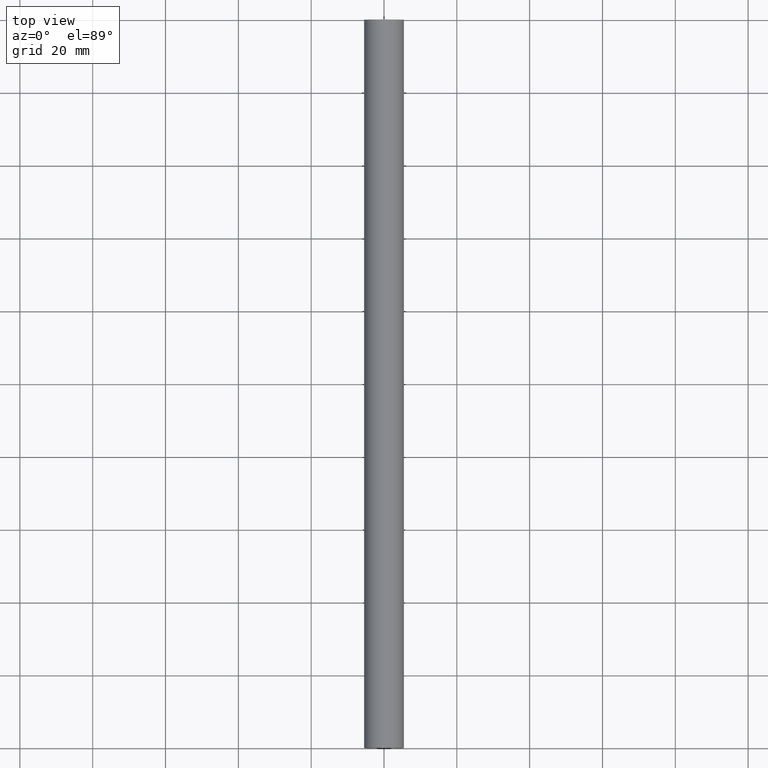
[diagram: clean part render]
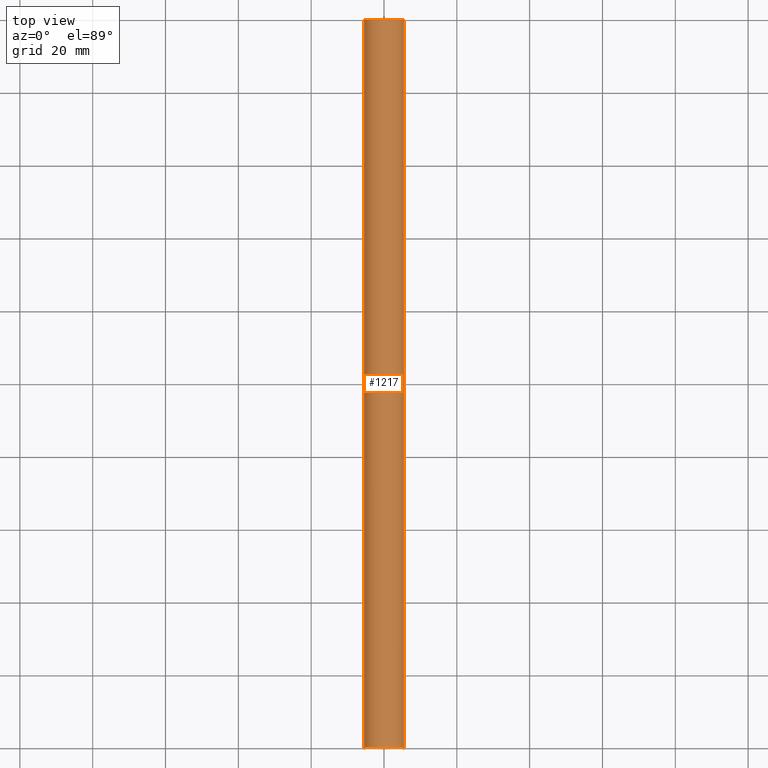
[diagram: same view with one face highlighted and labeled with its STEP entity id]
A machine part, top view. The second image highlights one B-rep face of the part: STEP entity #1217.
In plain terms, the highlighted face is a freeform B-spline surface patch.
Its self-contained STEP definition (entity closure, byte-faithful):
#770=CARTESIAN_POINT('',(5.474783945414970,0.0,-5.967107423224420));
#771=VERTEX_POINT('',#770);
#777=CARTESIAN_POINT('',(-5.474783945414960,0.0,-5.967107423224380));
#778=VERTEX_POINT('',#777);
#779=CARTESIAN_POINT('',(5.474783945414970,0.0,-5.967107423224420));
#780=CARTESIAN_POINT('',(5.528089472293734,0.0,-5.352947772302506));
#781=CARTESIAN_POINT('',(5.430724814971278,0.0,-4.178751100546855));
#782=CARTESIAN_POINT('',(4.796797843431809,0.0,-2.676871972452646));
#783=CARTESIAN_POINT('',(3.860724628707918,0.0,-1.498336793745772));
#784=CARTESIAN_POINT('',(2.748098974885307,0.0,-0.668779715161664));
#785=CARTESIAN_POINT('',(1.422518208917215,0.0,-0.126478291012889));
#786=CARTESIAN_POINT('',(-0.047443654217036,0.0,0.074734913632913));
#787=CARTESIAN_POINT('',(-1.422430704838693,0.0,-0.131650333397912));
#788=CARTESIAN_POINT('',(-2.744588070895392,0.0,-0.672457450194395));
#789=CARTESIAN_POINT('',(-3.733966957657617,0.0,-1.390490918137118));
#790=CARTESIAN_POINT('',(-4.627277552244890,0.0,-2.443490960344150));
#791=CARTESIAN_POINT('',(-5.165653161141839,0.0,-3.485048737056491));
#792=CARTESIAN_POINT('',(-5.484249699139913,0.0,-4.730543095596393));
#793=CARTESIAN_POINT('',(-5.513594603298420,0.0,-5.518302720792216));
#794=CARTESIAN_POINT('',(-5.474783945414960,0.0,-5.967107423224380));
#795=B_SPLINE_CURVE_WITH_KNOTS('',3,(#779,#780,#781,#782,#783,#784,#785,#786,#787,#788,#789,#790,#791,#792,#793,#794),.UNSPECIFIED.,.F.,.U.,(4,1,1,1,1,1,1,1,1,1,1,1,1,4),(0.000000784211210,1.849284648861733,3.485256842392172,4.836732531411034,6.330346934060120,7.610595677814629,9.104333091299978,10.740328952223130,11.736072005233160,13.371950374832320,14.367747301252610,15.861468346933270,16.857246470693202,18.208665449824199),.UNSPECIFIED.);
#796=EDGE_CURVE('',#771,#778,#795,.T.);
#865=CARTESIAN_POINT('',(-5.474783945414960,200.0,-5.967107423224380));
#866=VERTEX_POINT('',#865);
#872=CARTESIAN_POINT('',(5.474783945414970,200.0,-5.967107423224420));
#873=VERTEX_POINT('',#872);
#874=CARTESIAN_POINT('',(5.474783945414970,200.0,-5.967107423224420));
#875=CARTESIAN_POINT('',(5.519827367886293,200.000000000000600,-5.447434836918098));
#876=CARTESIAN_POINT('',(5.476250827559981,199.999999999999200,-4.682330406483599));
#877=CARTESIAN_POINT('',(5.173069655375769,200.000000000000910,-3.558308196471750));
#878=CARTESIAN_POINT('',(4.667131906815883,199.999999999999690,-2.478228906192033));
#879=CARTESIAN_POINT('',(3.805376178503539,199.999999999999400,-1.448939689945759));
#880=CARTESIAN_POINT('',(2.797320278621489,200.000000000001110,-0.727653442308251));
#881=CARTESIAN_POINT('',(1.761000375124963,199.999999999999400,-0.247714601844893));
#882=CARTESIAN_POINT('',(0.690185304667137,200.000000000000110,-0.000929538469778));
#883=CARTESIAN_POINT('',(-0.642966901153275,200.000000000000400,0.016447808360785));
#884=CARTESIAN_POINT('',(-1.974447564887812,199.999999999999200,-0.290382409590392));
#885=CARTESIAN_POINT('',(-3.397534599943618,200.000000000000200,-1.076653023219228));
#886=CARTESIAN_POINT('',(-4.506595929931150,200.000000000000110,-2.209450509880834));
#887=CARTESIAN_POINT('',(-5.165631865335141,199.999999999999890,-3.485073816304869));
#888=CARTESIAN_POINT('',(-5.484243371571948,199.999999999999890,-4.730544269736238));
#889=CARTESIAN_POINT('',(-5.513601357104204,200.0,-5.518301953341100));
#890=CARTESIAN_POINT('',(-5.474783945414960,200.0,-5.967107423224380));
#891=B_SPLINE_CURVE_WITH_KNOTS('',3,(#874,#875,#876,#877,#878,#879,#880,#881,#882,#883,#884,#885,#886,#887,#888,#889,#890),.UNSPECIFIED.,.F.,.U.,(4,1,1,1,1,1,1,1,1,1,1,1,1,1,4),(0.000000784211210,1.564768177473450,2.276058943745541,3.485256842392172,5.121232194705986,6.259125052006780,7.183824231026742,8.535309277416046,9.531100484633718,11.167095544799601,12.589490934239240,14.367747301252610,15.861468346933270,16.857246470693202,18.208665449824199),.UNSPECIFIED.);
#892=EDGE_CURVE('',#873,#866,#891,.T.);
#1179=CARTESIAN_POINT('',(-5.474783945414960,200.0,-5.967107423224380));
#1180=CARTESIAN_POINT('',(-5.474783945414960,0.0,-5.967107423224380));
#1181=QUASI_UNIFORM_CURVE('',1,(#1179,#1180),.UNSPECIFIED.,.F.,.U.);
#1182=EDGE_CURVE('',#866,#778,#1181,.T.);
#1189=CARTESIAN_POINT('',(-5.458980417665283,205.0,-6.124052395861134));
#1190=CARTESIAN_POINT('',(-5.458980417665283,-5.125000000000000,-6.124052395861134));
#1191=CARTESIAN_POINT('',(-6.182514492786639,205.0,0.155786212259161));
#1192=CARTESIAN_POINT('',(-6.182514492786639,-5.125000000000000,0.155786212259161));
#1193=CARTESIAN_POINT('',(0.136905638570308,205.0,-0.001705709122539));
#1194=CARTESIAN_POINT('',(0.136905638570308,-5.125000000000000,-0.001705709122539));
#1195=CARTESIAN_POINT('',(6.456325769927256,205.0,-0.159197630504240));
#1196=CARTESIAN_POINT('',(6.456325769927256,-5.125000000000000,-0.159197630504240));
#1197=CARTESIAN_POINT('',(5.420873253147789,205.0,-6.395198960474835));
#1198=CARTESIAN_POINT('',(5.420873253147789,-5.125000000000000,-6.395198960474835));
#1206=(BOUNDED_SURFACE()B_SPLINE_SURFACE(1,2,((#1189,#1191,#1193,#1195,#1197),(#1190,#1192,#1194,#1196,#1198)),.UNSPECIFIED.,.F.,.F.,.U.)B_SPLINE_SURFACE_WITH_KNOTS((2,2),(3,2,3),(0.0,210.125000000000000),(0.0,10.017034121555410,20.034068243110809),.UNSPECIFIED.)GEOMETRIC_REPRESENTATION_ITEM()RATIONAL_B_SPLINE_SURFACE(((1.0,0.656059028990507,1.0,0.656059028990507,1.0),(1.0,0.656059028990507,1.0,0.656059028990507,1.0)))REPRESENTATION_ITEM('')SURFACE());
#1207=ORIENTED_EDGE('',*,*,#796,.F.);
#1208=CARTESIAN_POINT('',(5.474783945414970,200.0,-5.967107423224420));
#1209=CARTESIAN_POINT('',(5.474783945414970,0.0,-5.967107423224420));
#1210=QUASI_UNIFORM_CURVE('',1,(#1208,#1209),.UNSPECIFIED.,.F.,.U.);
#1211=EDGE_CURVE('',#873,#771,#1210,.T.);
#1212=ORIENTED_EDGE('',*,*,#1211,.F.);
#1213=ORIENTED_EDGE('',*,*,#892,.T.);
#1214=ORIENTED_EDGE('',*,*,#1182,.T.);
#1215=EDGE_LOOP('',(#1207,#1212,#1213,#1214));
#1216=FACE_OUTER_BOUND('',#1215,.T.);
#1217=ADVANCED_FACE('',(#1216),#1206,.T.);